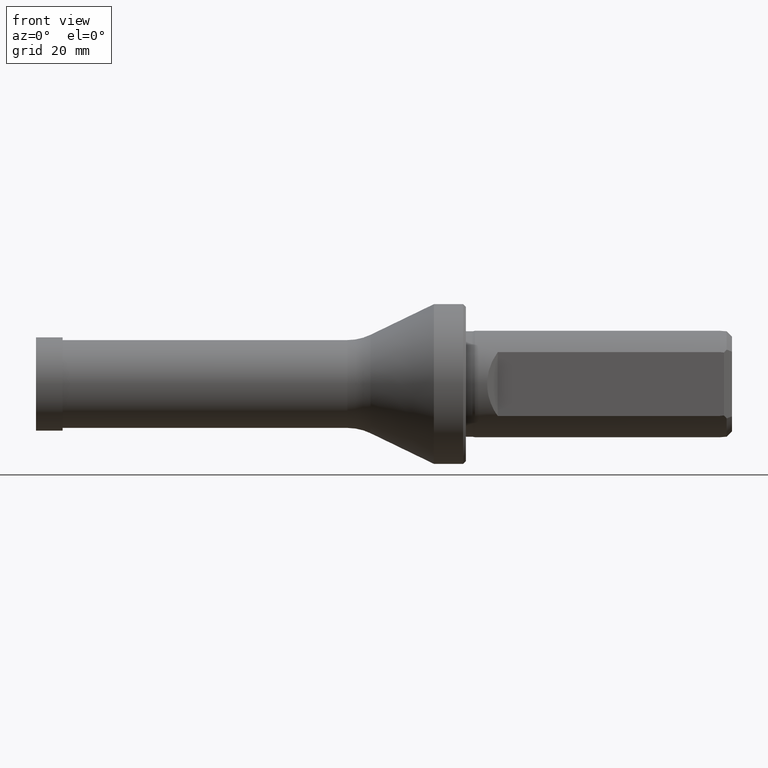
[diagram: clean part render]
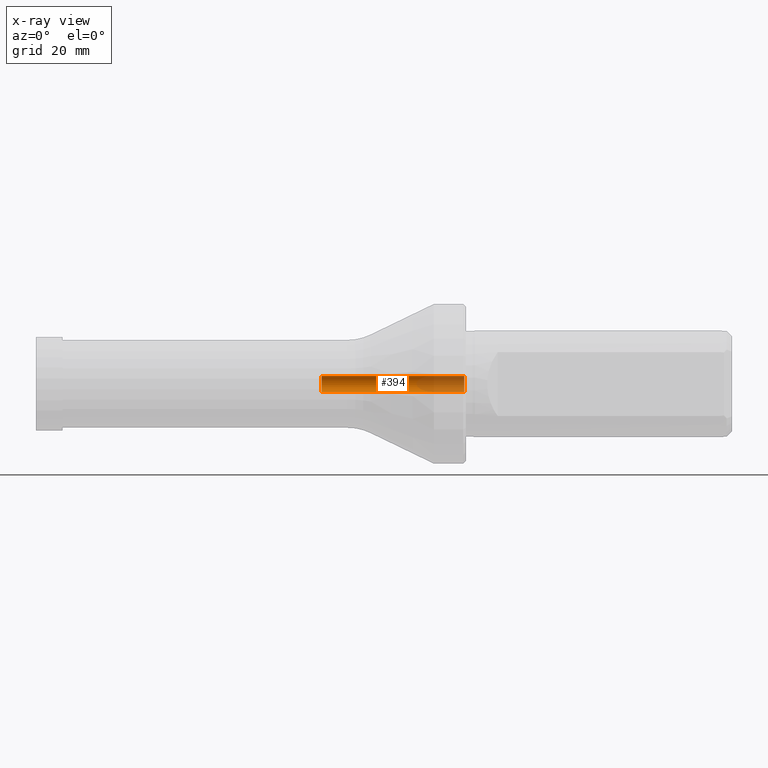
[diagram: x-ray — body ghosted, one internal face saturated and labeled with its STEP entity id]
A machine part, front view, then the same camera in x-ray: the body is ghosted and one INTERNAL B-rep face — a face not visible from any outside direction — is saturated and labeled: STEP entity #394.
In plain terms, the highlighted cylindrical surface (edge-blend (fillet) strip) has radius 1.5 mm, axis along (-1, -0, -0).
Its self-contained STEP definition (entity closure, byte-faithful):
#26 = ORIENTED_EDGE ( 'NONE', *, *, #374, .T. ) ;
#32 = CYLINDRICAL_SURFACE ( 'NONE', #857, 1.500000000000001800 ) ;
#69 = DIRECTION ( 'NONE',  ( 0.0000000000000000000, 0.0000000000000000000, 1.000000000000000000 ) ) ;
#118 = CARTESIAN_POINT ( 'NONE',  ( 53.15129092854134300, 0.0000000000000000000, -1.500000000000003300 ) ) ;
#134 = EDGE_CURVE ( 'NONE', #851, #1209, #913, .T. ) ;
#135 = DIRECTION ( 'NONE',  ( -1.000000000000000000, -0.0000000000000000000, -0.0000000000000000000 ) ) ;
#169 = CARTESIAN_POINT ( 'NONE',  ( 79.94956969048621400, 1.836970198721030900E-016, -1.500000000000000000 ) ) ;
#204 = LINE ( 'NONE', #1042, #248 ) ;
#248 = VECTOR ( 'NONE', #762, 1000.000000000000000 ) ;
#314 = VECTOR ( 'NONE', #135, 1000.000000000000000 ) ;
#349 = CARTESIAN_POINT ( 'NONE',  ( 0.0000000000000000000, 0.0000000000000000000, 1.500000000000001800 ) ) ;
#355 = CARTESIAN_POINT ( 'NONE',  ( 0.0000000000000000000, 0.0000000000000000000, 0.0000000000000000000 ) ) ;
#374 = EDGE_CURVE ( 'NONE', #851, #866, #650, .T. ) ;
#394 = ADVANCED_FACE ( 'NONE', ( #542 ), #32, .F. ) ;
#395 = VERTEX_POINT ( 'NONE', #118 ) ;
#438 = DIRECTION ( 'NONE',  ( -1.000000000000000000, -0.0000000000000000000, -0.0000000000000000000 ) ) ;
#441 = DIRECTION ( 'NONE',  ( -1.000000000000000000, -0.0000000000000000000, -0.0000000000000000000 ) ) ;
#504 = CIRCLE ( 'NONE', #877, 1.500000000000003600 ) ;
#519 = DIRECTION ( 'NONE',  ( -1.000000000000000000, -0.0000000000000000000, -0.0000000000000000000 ) ) ;
#542 = FACE_OUTER_BOUND ( 'NONE', #1121, .T. ) ;
#650 = LINE ( 'NONE', #349, #314 ) ;
#698 = CARTESIAN_POINT ( 'NONE',  ( 53.15129092854134300, 1.836970198721033600E-016, 1.500000000000003300 ) ) ;
#762 = DIRECTION ( 'NONE',  ( -1.000000000000000000, -0.0000000000000000000, -0.0000000000000000000 ) ) ;
#763 = EDGE_CURVE ( 'NONE', #1209, #395, #204, .T. ) ;
#764 = CARTESIAN_POINT ( 'NONE',  ( 79.94956969048621400, 0.0000000000000000000, 0.0000000000000000000 ) ) ;
#784 = DIRECTION ( 'NONE',  ( 0.0000000000000000000, 0.0000000000000000000, 1.000000000000000000 ) ) ;
#817 = CARTESIAN_POINT ( 'NONE',  ( 79.94956969048621400, 0.0000000000000000000, 1.500000000000000000 ) ) ;
#847 = EDGE_CURVE ( 'NONE', #866, #395, #504, .T. ) ;
#851 = VERTEX_POINT ( 'NONE', #817 ) ;
#857 = AXIS2_PLACEMENT_3D ( 'NONE', #355, #519, #69 ) ;
#866 = VERTEX_POINT ( 'NONE', #698 ) ;
#877 = AXIS2_PLACEMENT_3D ( 'NONE', #1168, #438, #784 ) ;
#913 = CIRCLE ( 'NONE', #1202, 1.500000000000000000 ) ;
#996 = DIRECTION ( 'NONE',  ( 0.0000000000000000000, 0.0000000000000000000, 1.000000000000000000 ) ) ;
#997 = ORIENTED_EDGE ( 'NONE', *, *, #847, .T. ) ;
#1042 = CARTESIAN_POINT ( 'NONE',  ( 0.0000000000000000000, 1.836970198721031900E-016, -1.500000000000001800 ) ) ;
#1118 = ORIENTED_EDGE ( 'NONE', *, *, #763, .F. ) ;
#1121 = EDGE_LOOP ( 'NONE', ( #1118, #1154, #26, #997 ) ) ;
#1154 = ORIENTED_EDGE ( 'NONE', *, *, #134, .F. ) ;
#1168 = CARTESIAN_POINT ( 'NONE',  ( 53.15129092854134300, 0.0000000000000000000, 0.0000000000000000000 ) ) ;
#1202 = AXIS2_PLACEMENT_3D ( 'NONE', #764, #441, #996 ) ;
#1209 = VERTEX_POINT ( 'NONE', #169 ) ;